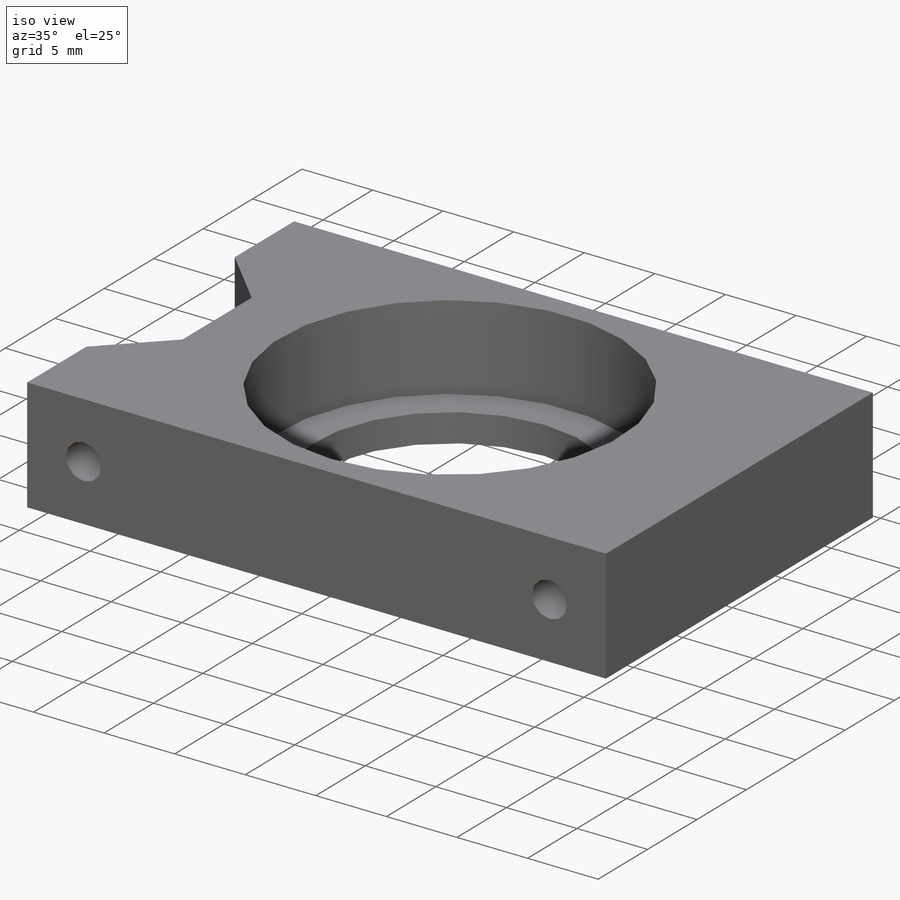
[diagram: iso view]
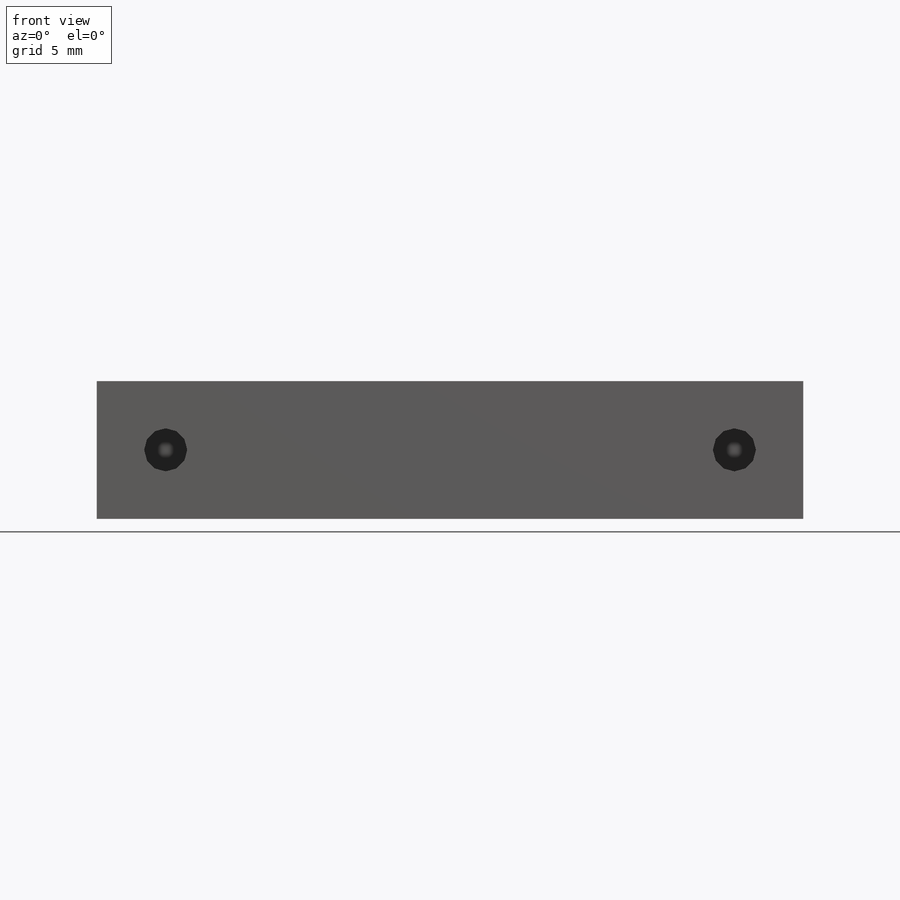
[diagram: front view]
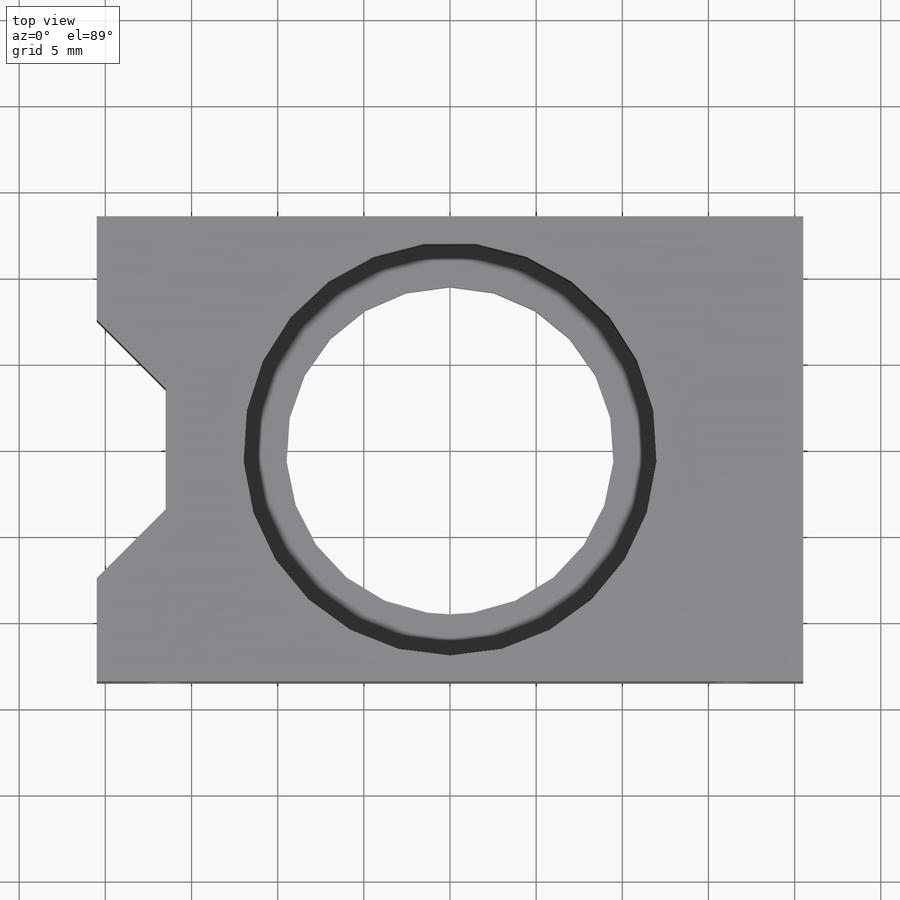
[diagram: top view]
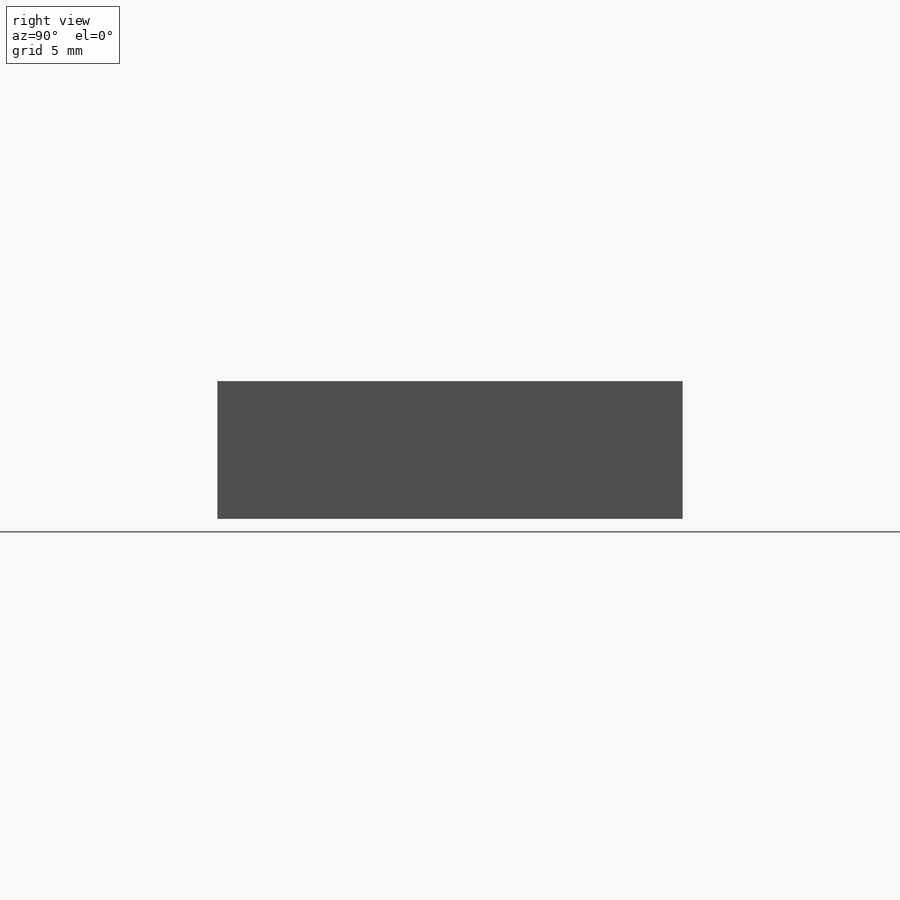
[diagram: right view]
SOLIDWORKS PART (.sldprt)
format: sldprt  version: not decoded by parser v0  size: 254,976 bytes
history: native  units: mm
features: sketch x5, cut_extrude x4, plane x3, material x1, extrude x1 (+10 scaffold rows collapsed)
feature tree (24):
  scaffold x10  (default folders/planes/origin — collapsed)
  material  "Материал <не указан>"
  plane  "Спереди"
  plane  "Сверху"
  plane  "Справа"
  sketch  "Эскиз1"  dims[D3=19.0mm D1=41.0mm D2=27.0mm]
  extrude  "Бобышка-Вытянуть1"  Depth=8mm
  sketch  "Эскиз2"  dims[D1=24.0mm]
  cut_extrude  "Вырез-Вытянуть1"  Depth=6mm
  sketch  "Эскиз3"  dims[c1.D1=6.0mm c1.D2=4.0mm c1.D3=~4.387782mm c2.D3=135.0deg]
  cut_extrude  "Вырез-Вытянуть2"  Depth=8mm
  sketch  "Эскиз4"  dims[D1=2.5mm D2=4.0mm D3=16.5mm]
  cut_extrude  "Вырез-Вытянуть3"  Depth=7mm
  sketch  "Эскиз5"  dims[D1=2.5mm D2=16.5mm D3=4.0mm]
  cut_extrude  "Вырез-Вытянуть4"  Depth=7mm
decode coverage: 10 of 10 modeling features carry decoded parameters
note: ~ marks probable driven/reference dimensions
note: suppression state not decoded; provenance and decode notes live in map.json
